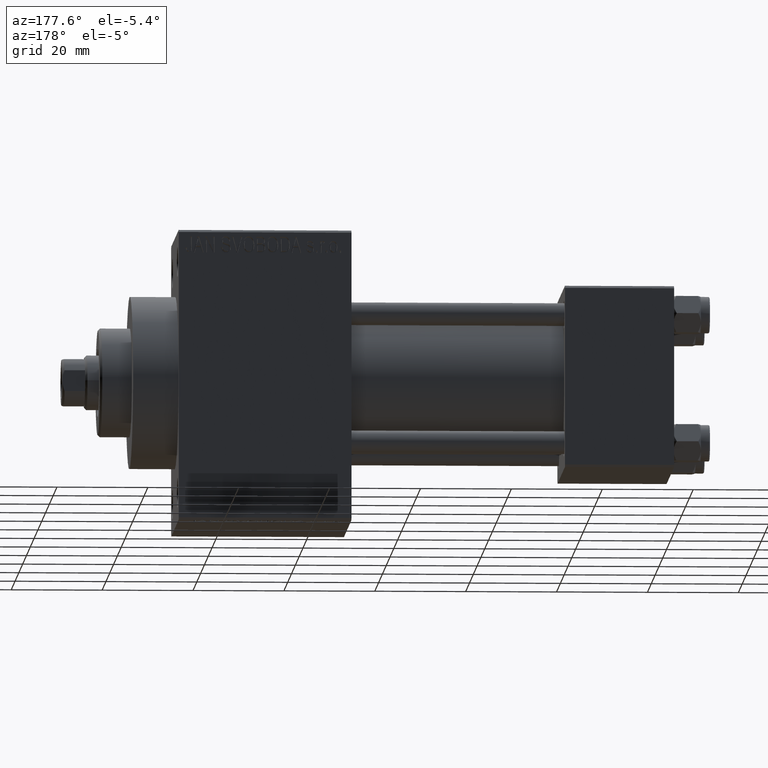
[diagram: clean part render]
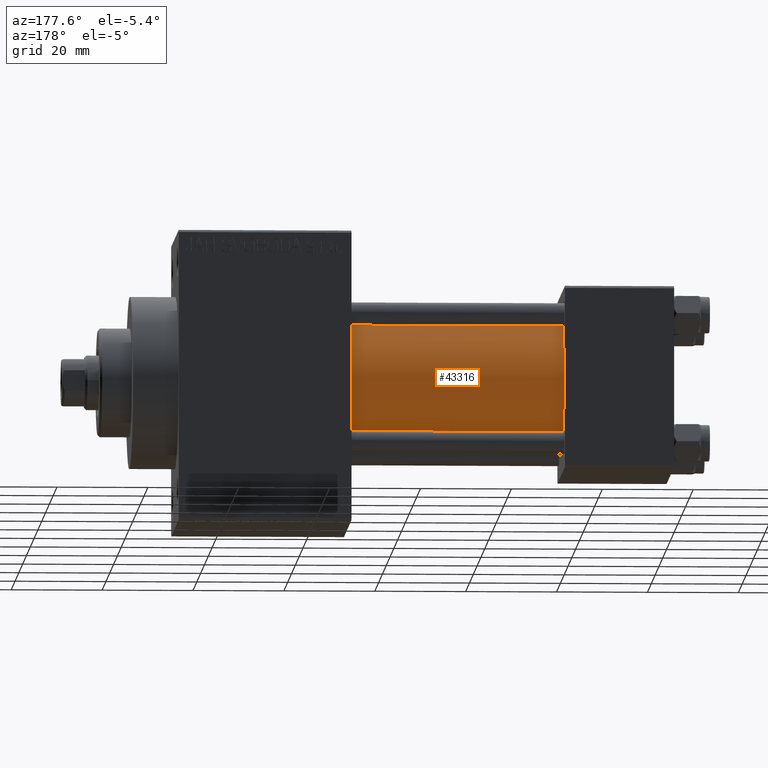
[diagram: same view with one face highlighted and labeled with its STEP entity id]
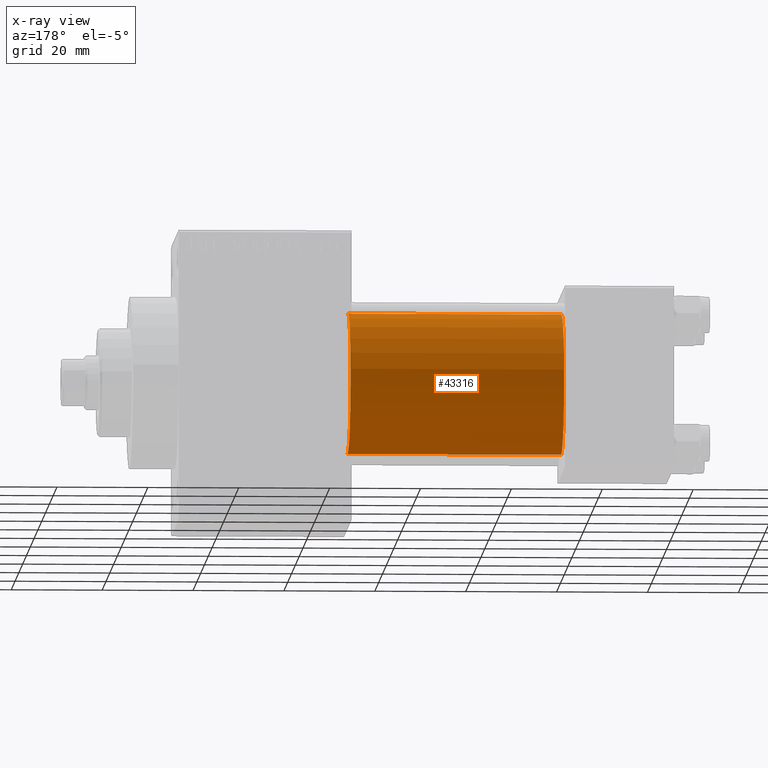
[diagram: x-ray of the same camera — body ghosted, the highlighted face saturated]
A machine part, auxiliary view. The second image highlights one B-rep face of the part: STEP entity #43316.
The next image is the same camera in x-ray: the body ghosted, the highlighted face saturated — about 0% of this face is hidden behind the body in this view.
In plain terms, the highlighted cylindrical surface (partial cylindrical patch) has radius 15.5 mm, axis along (-1, -0, -0).
Its self-contained STEP definition (entity closure, byte-faithful):
#850 = CARTESIAN_POINT ( 'NONE',  ( 71.00000000000001421, -7.038826752868131828E-16, -15.50000000000000000 ) ) ;
#1331 = DIRECTION ( 'NONE',  ( 0.000000000000000000, 0.000000000000000000, -1.000000000000000000 ) ) ;
#2241 = DIRECTION ( 'NONE',  ( 0.000000000000000000, 0.000000000000000000, 1.000000000000000000 ) ) ;
#2484 = DIRECTION ( 'NONE',  ( -1.000000000000000000, -0.000000000000000000, -0.000000000000000000 ) ) ;
#2612 = VERTEX_POINT ( 'NONE', #850 ) ;
#6067 = EDGE_CURVE ( 'NONE', #18668, #30652, #7038, .T. ) ;
#6435 = CARTESIAN_POINT ( 'NONE',  ( 71.00000000000001421, -2.602085213965210642E-15, 15.50000000000000000 ) ) ;
#7038 = CIRCLE ( 'NONE', #41232, 15.50000000000000000 ) ;
#7662 = ORIENTED_EDGE ( 'NONE', *, *, #34071, .F. ) ;
#9382 = VECTOR ( 'NONE', #36281, 1000.000000000000000 ) ;
#9404 = CYLINDRICAL_SURFACE ( 'NONE', #38567, 15.50000000000000000 ) ;
#9518 = DIRECTION ( 'NONE',  ( 0.000000000000000000, 0.000000000000000000, 1.000000000000000000 ) ) ;
#10936 = EDGE_LOOP ( 'NONE', ( #12243, #45342, #20998, #7662 ) ) ;
#11064 = LINE ( 'NONE', #21734, #9382 ) ;
#12243 = ORIENTED_EDGE ( 'NONE', *, *, #39556, .F. ) ;
#12883 = DIRECTION ( 'NONE',  ( -1.000000000000000000, -0.000000000000000000, -0.000000000000000000 ) ) ;
#12975 = FACE_OUTER_BOUND ( 'NONE', #10936, .T. ) ;
#13322 = CIRCLE ( 'NONE', #44462, 15.50000000000000000 ) ;
#13978 = CARTESIAN_POINT ( 'NONE',  ( 71.00000000000001421, -2.602085213965210642E-15, 15.50000000000000000 ) ) ;
#17331 = CARTESIAN_POINT ( 'NONE',  ( 24.00000000000000000, -2.602085213965210642E-15, 0.000000000000000000 ) ) ;
#18668 = VERTEX_POINT ( 'NONE', #42695 ) ;
#20998 = ORIENTED_EDGE ( 'NONE', *, *, #6067, .T. ) ;
#21651 = VERTEX_POINT ( 'NONE', #13978 ) ;
#21734 = CARTESIAN_POINT ( 'NONE',  ( 71.00000000000001421, -7.038826752868131828E-16, -15.50000000000000000 ) ) ;
#22961 = DIRECTION ( 'NONE',  ( 1.000000000000000000, 0.000000000000000000, 0.000000000000000000 ) ) ;
#30652 = VERTEX_POINT ( 'NONE', #42668 ) ;
#31420 = VECTOR ( 'NONE', #12883, 1000.000000000000000 ) ;
#31858 = DIRECTION ( 'NONE',  ( 1.000000000000000000, 0.000000000000000000, 0.000000000000000000 ) ) ;
#34071 = EDGE_CURVE ( 'NONE', #21651, #30652, #45490, .T. ) ;
#34305 = EDGE_CURVE ( 'NONE', #2612, #18668, #11064, .T. ) ;
#36281 = DIRECTION ( 'NONE',  ( -1.000000000000000000, -0.000000000000000000, -0.000000000000000000 ) ) ;
#38567 = AXIS2_PLACEMENT_3D ( 'NONE', #46278, #2484, #2241 ) ;
#39556 = EDGE_CURVE ( 'NONE', #2612, #21651, #13322, .T. ) ;
#41232 = AXIS2_PLACEMENT_3D ( 'NONE', #17331, #31858, #9518 ) ;
#42277 = CARTESIAN_POINT ( 'NONE',  ( 71.00000000000001421, -2.602085213965210642E-15, 0.000000000000000000 ) ) ;
#42668 = CARTESIAN_POINT ( 'NONE',  ( 24.00000000000000000, -2.602085213965210642E-15, 15.50000000000000000 ) ) ;
#42695 = CARTESIAN_POINT ( 'NONE',  ( 24.00000000000000000, -7.038826752868131828E-16, -15.50000000000000000 ) ) ;
#43316 = ADVANCED_FACE ( 'NONE', ( #12975 ), #9404, .T. ) ;
#44462 = AXIS2_PLACEMENT_3D ( 'NONE', #42277, #22961, #1331 ) ;
#45342 = ORIENTED_EDGE ( 'NONE', *, *, #34305, .T. ) ;
#45490 = LINE ( 'NONE', #6435, #31420 ) ;
#46278 = CARTESIAN_POINT ( 'NONE',  ( 71.00000000000001421, -2.602085213965210642E-15, 0.000000000000000000 ) ) ;